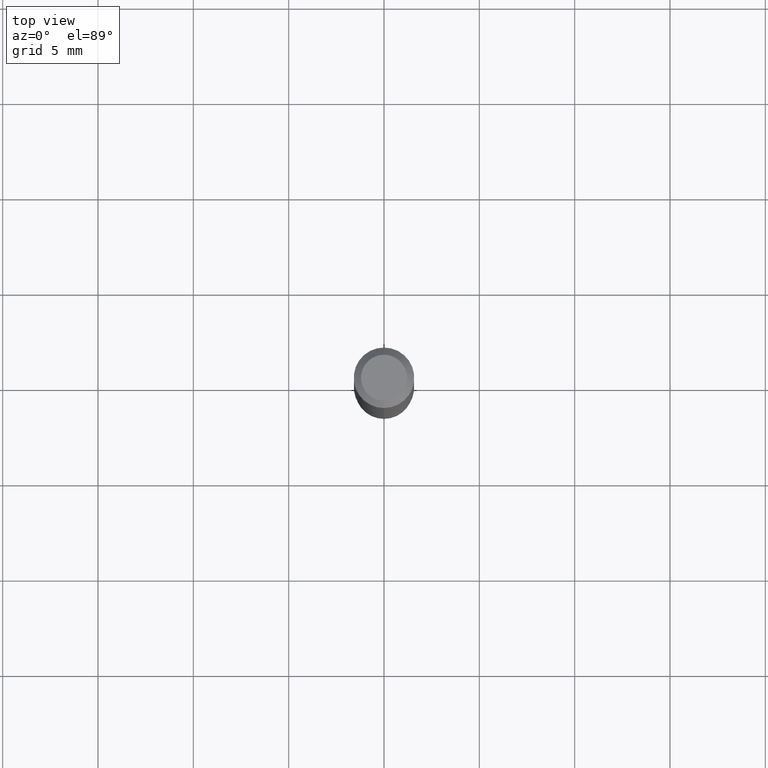
[diagram: clean part render]
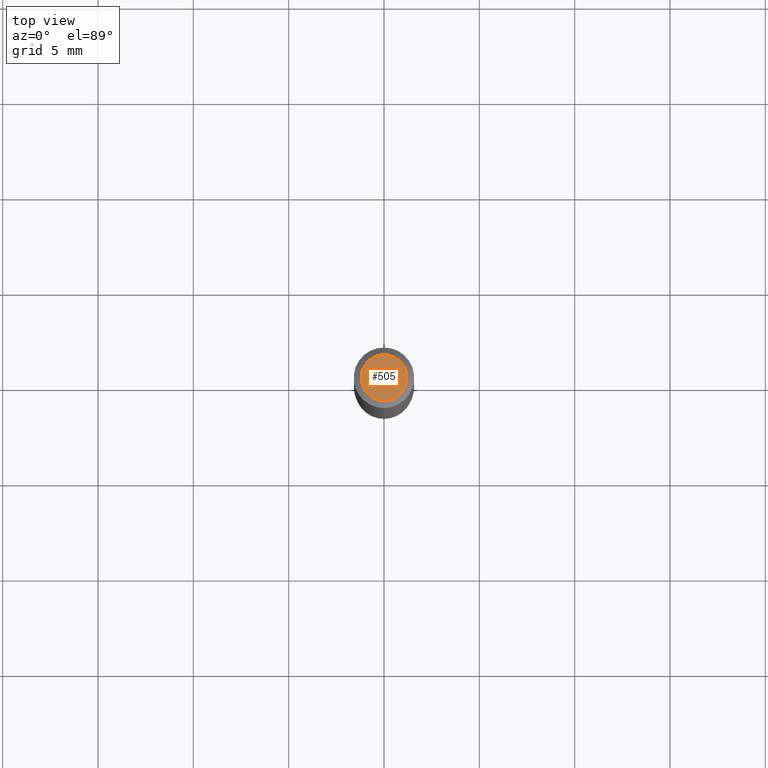
[diagram: same view with one face highlighted and labeled with its STEP entity id]
A machine part, top view. The second image highlights one B-rep face of the part: STEP entity #505.
In plain terms, the highlighted planar face has unit normal (0, -0, -1).
Its self-contained STEP definition (entity closure, byte-faithful):
#17 = PLANE ( 'NONE',  #52 ) ;
#52 = AXIS2_PLACEMENT_3D ( 'NONE', #404, #445, #330 ) ;
#95 = EDGE_LOOP ( 'NONE', ( #437, #217 ) ) ;
#117 = EDGE_CURVE ( 'NONE', #331, #193, #178, .T. ) ;
#162 = CARTESIAN_POINT ( 'NONE',  ( -3.773273898774340269E-16, -0.04749999999999999362, 1.569887826779837937E-16 ) ) ;
#178 = CIRCLE ( 'NONE', #486, 0.04749999999999999362 ) ;
#193 = VERTEX_POINT ( 'NONE', #162 ) ;
#215 = DIRECTION ( 'NONE',  ( -2.445441325104766561E-29, 3.491520693314361482E-15, 1.000000000000000000 ) ) ;
#217 = ORIENTED_EDGE ( 'NONE', *, *, #311, .T. ) ;
#225 = AXIS2_PLACEMENT_3D ( 'NONE', #304, #215, #502 ) ;
#296 = FACE_OUTER_BOUND ( 'NONE', #95, .T. ) ;
#300 = CIRCLE ( 'NONE', #225, 0.04749999999999999362 ) ;
#304 = CARTESIAN_POINT ( 'NONE',  ( 2.166282032861282342E-46, -3.092946237410227591E-32, -8.858450254448349197E-18 ) ) ;
#311 = EDGE_CURVE ( 'NONE', #193, #331, #300, .T. ) ;
#330 = DIRECTION ( 'NONE',  ( 6.982962677686265922E-15, 1.000000000000000000, -3.491520693314361482E-15 ) ) ;
#331 = VERTEX_POINT ( 'NONE', #381 ) ;
#381 = CARTESIAN_POINT ( 'NONE',  ( 3.840629472727447874E-16, 0.04749999999999999362, -1.747056831868805136E-16 ) ) ;
#404 = CARTESIAN_POINT ( 'NONE',  ( 3.316907271900976096E-16, 0.04749999999999999362, -1.702764580596563336E-16 ) ) ;
#436 = DIRECTION ( 'NONE',  ( -6.982962677686266711E-15, -1.000000000000000000, 3.491520693314361482E-15 ) ) ;
#437 = ORIENTED_EDGE ( 'NONE', *, *, #117, .T. ) ;
#445 = DIRECTION ( 'NONE',  ( 2.445441325104766281E-29, -3.491520693314361482E-15, -1.000000000000000000 ) ) ;
#482 = CARTESIAN_POINT ( 'NONE',  ( 2.166282032861282342E-46, -3.092946237410227591E-32, -8.858450254448349197E-18 ) ) ;
#485 = DIRECTION ( 'NONE',  ( -2.445441325104766561E-29, 3.491520693314361482E-15, 1.000000000000000000 ) ) ;
#486 = AXIS2_PLACEMENT_3D ( 'NONE', #482, #485, #436 ) ;
#502 = DIRECTION ( 'NONE',  ( -6.982962677686266711E-15, -1.000000000000000000, 3.491520693314361482E-15 ) ) ;
#505 = ADVANCED_FACE ( 'NONE', ( #296 ), #17, .F. ) ;